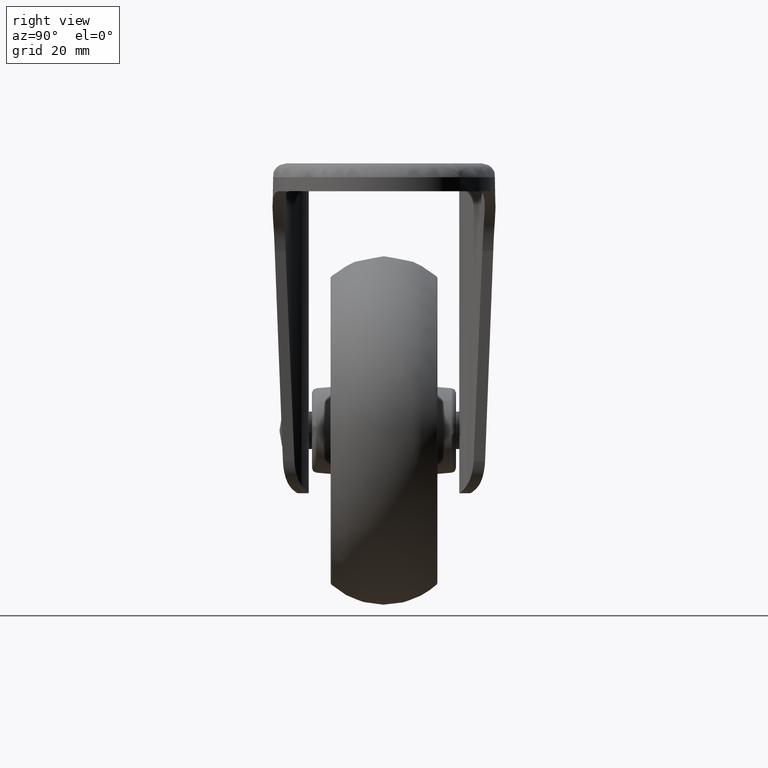
[diagram: clean part render]
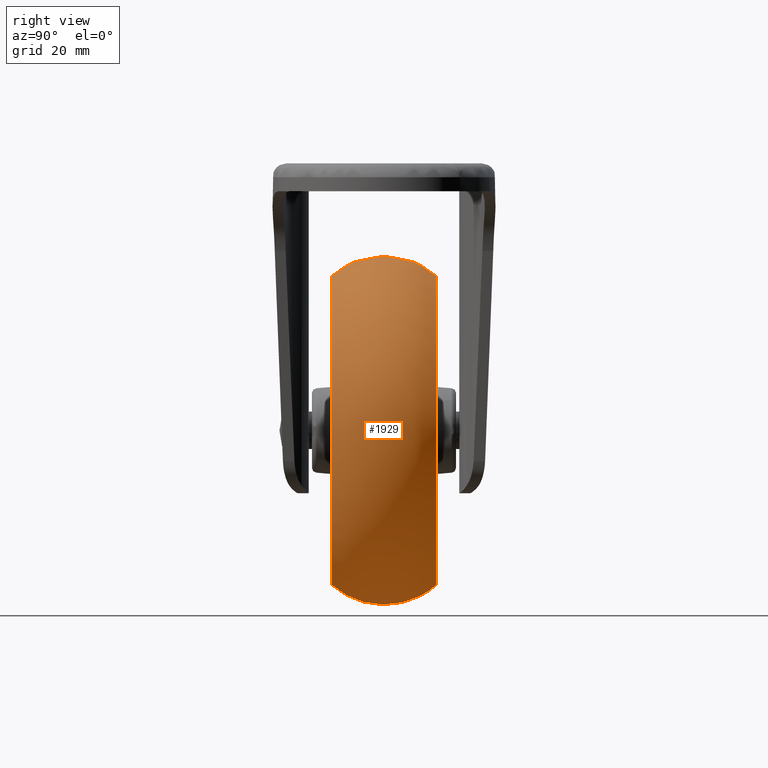
[diagram: same view with one face highlighted and labeled with its STEP entity id]
A machine part, right view. The second image highlights one B-rep face of the part: STEP entity #1929.
In plain terms, the highlighted face is a freeform B-spline surface patch.
Its self-contained STEP definition (entity closure, byte-faithful):
#1587=CARTESIAN_POINT('',(19.087546072659229,11.333333390564359,-30.370970014372290));
#1588=VERTEX_POINT('',#1587);
#1589=CARTESIAN_POINT('',(0.416828760859171,11.333333355879009,-90.668432805520183));
#1590=VERTEX_POINT('',#1589);
#1591=CARTESIAN_POINT('',(19.087546072659229,11.333333390564365,-30.370970014372300));
#1592=CARTESIAN_POINT('',(33.171051851883405,11.333333356382061,-40.279896599905918));
#1593=CARTESIAN_POINT('',(33.171051851883398,11.333333356382060,-57.500000000000000));
#1594=CARTESIAN_POINT('',(33.171051851883398,11.333333356382060,-90.256809430696592));
#1595=CARTESIAN_POINT('',(0.416828760859171,11.333333355879002,-90.668432805520183));
#1603=(BOUNDED_CURVE()B_SPLINE_CURVE(2,(#1591,#1592,#1593,#1594,#1595),.UNSPECIFIED.,.F.,.U.)B_SPLINE_CURVE_WITH_KNOTS((3,2,3),(0.098941835401221,0.250000000000000,0.497784295918441),.UNSPECIFIED.)CURVE()GEOMETRIC_REPRESENTATION_ITEM()RATIONAL_B_SPLINE_CURVE((0.859917636342776,0.823024351770445,1.0,0.709702639988092,0.994854295636446))REPRESENTATION_ITEM(''));
#1604=EDGE_CURVE('',#1588,#1590,#1603,.T.);
#1621=CARTESIAN_POINT('',(-33.090302693152083,11.333333355763241,-59.813125304134793));
#1622=VERTEX_POINT('',#1621);
#1636=CARTESIAN_POINT('',(-24.743652437382721,11.333333389487850,-35.407685789875728));
#1637=VERTEX_POINT('',#1636);
#1638=CARTESIAN_POINT('',(-33.090302693152076,11.333333355763243,-59.813125304134786));
#1639=CARTESIAN_POINT('',(-33.171051851883398,11.333333356382058,-58.657972093071272));
#1640=CARTESIAN_POINT('',(-33.171051851883398,11.333333356382060,-57.500000000000000));
#1641=CARTESIAN_POINT('',(-33.171051851883405,11.333333356382060,-44.846472562066047));
#1642=CARTESIAN_POINT('',(-24.743652437382718,11.333333389487848,-35.407685789875721));
#1650=(BOUNDED_CURVE()B_SPLINE_CURVE(2,(#1638,#1639,#1640,#1641,#1642),.UNSPECIFIED.,.F.,.U.)B_SPLINE_CURVE_WITH_KNOTS((3,2,3),(0.737833686532154,0.750000000000000,0.866465190487888),.UNSPECIFIED.)CURVE()GEOMETRIC_REPRESENTATION_ITEM()RATIONAL_B_SPLINE_CURVE((0.972879876380762,0.985746277149236,1.0,0.863552541913123,0.854236117407655))REPRESENTATION_ITEM(''));
#1651=EDGE_CURVE('',#1622,#1637,#1650,.T.);
#1735=CARTESIAN_POINT('',(0.0,11.333333356382060,-24.328948148116609));
#1736=VERTEX_POINT('',#1735);
#1737=CARTESIAN_POINT('',(0.0,11.333333356382060,-24.328948148116609));
#1738=CARTESIAN_POINT('',(10.500051755814004,11.333333356382063,-24.328948148116609));
#1739=CARTESIAN_POINT('',(19.087546072659229,11.333333390564365,-30.370970014372300));
#1747=(BOUNDED_CURVE()B_SPLINE_CURVE(2,(#1737,#1738,#1739),.UNSPECIFIED.,.F.,.U.)B_SPLINE_CURVE_WITH_KNOTS((3,3),(0.0,0.098941835401221),.UNSPECIFIED.)CURVE()GEOMETRIC_REPRESENTATION_ITEM()RATIONAL_B_SPLINE_CURVE((1.0,0.884082429416102,0.859917636342776))REPRESENTATION_ITEM(''));
#1748=EDGE_CURVE('',#1736,#1588,#1747,.T.);
#1780=CARTESIAN_POINT('',(-24.743652437382718,11.333333389487848,-35.407685789875721));
#1781=CARTESIAN_POINT('',(-14.852026505317763,11.333333356382061,-24.328948148116606));
#1782=CARTESIAN_POINT('',(0.0,11.333333356382060,-24.328948148116609));
#1790=(BOUNDED_CURVE()B_SPLINE_CURVE(2,(#1780,#1781,#1782),.UNSPECIFIED.,.F.,.U.)B_SPLINE_CURVE_WITH_KNOTS((3,3),(0.866465190487887,1.0),.UNSPECIFIED.)CURVE()GEOMETRIC_REPRESENTATION_ITEM()RATIONAL_B_SPLINE_CURVE((0.854236117407655,0.843554239273424,1.0))REPRESENTATION_ITEM(''));
#1791=EDGE_CURVE('',#1637,#1736,#1790,.T.);
#1796=CARTESIAN_POINT('',(-32.320295686641508,-12.141246051299873,-59.759297388754199));
#1797=CARTESIAN_POINT('',(-32.384955744852128,-12.141246051299877,-58.834305304540202));
#1798=CARTESIAN_POINT('',(-32.396607596636919,-12.141246051299873,-57.907129208355464));
#1799=CARTESIAN_POINT('',(-32.803736804992376,-12.141246051299873,-25.510521611718570));
#1800=CARTESIAN_POINT('',(-0.407129208355470,-12.141246051299873,-25.103392403363078));
#1801=CARTESIAN_POINT('',(31.989478388281437,-12.141246051299873,-24.696263195007617));
#1802=CARTESIAN_POINT('',(32.396607596636919,-12.141246051299873,-57.092870791644522));
#1803=CARTESIAN_POINT('',(32.803736804992390,-12.141246051299873,-89.489478388281441));
#1804=CARTESIAN_POINT('',(0.407129208355446,-12.141246051299873,-89.896607596636912));
#1805=CARTESIAN_POINT('',(-44.678389715614792,-0.000000330962809,-60.623169732013039));
#1806=CARTESIAN_POINT('',(-44.767773405287009,-0.000000330962809,-59.344494647383385));
#1807=CARTESIAN_POINT('',(-44.783880497251644,-0.000000330962809,-58.062800464818544));
#1808=CARTESIAN_POINT('',(-45.346680962070202,-0.000000330962809,-13.278919967566940));
#1809=CARTESIAN_POINT('',(-0.562800464818569,-0.000000330962809,-12.716119502748363));
#1810=CARTESIAN_POINT('',(44.221080032433058,-0.000000330962809,-12.153319037929798));
#1811=CARTESIAN_POINT('',(44.783880497251644,-0.000000330962809,-56.937199535181442));
#1812=CARTESIAN_POINT('',(45.346680962070202,-0.000000330962809,-101.721080032433040));
#1813=CARTESIAN_POINT('',(0.562800464818535,-0.000000330962809,-102.283880497251630));
#1814=CARTESIAN_POINT('',(-32.320296016731696,12.141245727001793,-59.759297411828619));
#1815=CARTESIAN_POINT('',(-32.384956075602709,12.141245727001788,-58.834305318167573));
#1816=CARTESIAN_POINT('',(-32.396607927506494,12.141245727001797,-57.907129212513510));
#1817=CARTESIAN_POINT('',(-32.803737140020012,12.141245727001792,-25.510521285007034));
#1818=CARTESIAN_POINT('',(-0.407129212513519,12.141245727001797,-25.103392072493516));
#1819=CARTESIAN_POINT('',(31.989478714992970,12.141245727001792,-24.696262859980010));
#1820=CARTESIAN_POINT('',(32.396607927506494,12.141245727001797,-57.092870787486476));
#1821=CARTESIAN_POINT('',(32.803737140020012,12.141245727001792,-89.489478714992970));
#1822=CARTESIAN_POINT('',(0.407129212513494,12.141245727001797,-89.896607927506480));
#1830=(BOUNDED_SURFACE()B_SPLINE_SURFACE(2,2,((#1796,#1805,#1814),(#1797,#1806,#1815),(#1798,#1807,#1816),(#1799,#1808,#1817),(#1800,#1809,#1818),(#1801,#1810,#1819),(#1802,#1811,#1820),(#1803,#1812,#1821),(#1804,#1813,#1822)),.UNSPECIFIED.,.F.,.F.,.U.)B_SPLINE_SURFACE_WITH_KNOTS((3,2,2,2,3),(3,3),(0.0,2.485279004089555,64.617313360053828,126.749347716018090,188.881382071982390),(0.0,28.568461953100421),.UNSPECIFIED.)GEOMETRIC_REPRESENTATION_ITEM()RATIONAL_B_SPLINE_SURFACE(((0.891926034698583,0.624304456737947,0.891926024486023),(0.901760850849706,0.631188345441138,0.901760840524537),(0.912450867518770,0.638670832541490,0.912450857071200),(0.645200195922070,0.451608476636145,0.645200188534523),(0.912450867518770,0.638670832541490,0.912450857071200),(0.645200195922070,0.451608476636145,0.645200188534523),(0.912450867518770,0.638670832541490,0.912450857071200),(0.645200195922070,0.451608476636145,0.645200188534523),(0.912450867518770,0.638670832541490,0.912450857071200)))REPRESENTATION_ITEM('')SURFACE());
#1831=ORIENTED_EDGE('',*,*,#1651,.F.);
#1832=CARTESIAN_POINT('',(-33.090302804869580,-11.333333299728819,-59.813125312003898));
#1833=VERTEX_POINT('',#1832);
#1834=CARTESIAN_POINT('',(-33.090302804869573,-11.333333299728817,-59.813125312003891));
#1835=CARTESIAN_POINT('',(-43.202467797790980,0.000000078441040,-60.520000221163585));
#1836=CARTESIAN_POINT('',(-33.090302693152069,11.333333355763244,-59.813125304134786));
#1844=(BOUNDED_CURVE()B_SPLINE_CURVE(2,(#1834,#1835,#1836),.UNSPECIFIED.,.F.,.U.)B_SPLINE_CURVE_WITH_KNOTS((3,3),(-1.710040864773123,-0.289959127900947),.UNSPECIFIED.)CURVE()GEOMETRIC_REPRESENTATION_ITEM()RATIONAL_B_SPLINE_CURVE((0.868722746517381,0.647507706783236,0.868722748799793))REPRESENTATION_ITEM(''));
#1845=EDGE_CURVE('',#1833,#1622,#1844,.T.);
#1846=ORIENTED_EDGE('',*,*,#1845,.F.);
#1847=CARTESIAN_POINT('',(0.0,-11.333333331469920,-24.328948002083362));
#1848=VERTEX_POINT('',#1847);
#1849=CARTESIAN_POINT('',(-33.090302804869580,-11.333333299728819,-59.813125312003905));
#1850=CARTESIAN_POINT('',(-33.171051997916649,-11.333333331469921,-58.657972098228761));
#1851=CARTESIAN_POINT('',(-33.171051997916642,-11.333333331469920,-57.500000000000000));
#1852=CARTESIAN_POINT('',(-33.171051997916635,-11.333333331469921,-24.328948002083358));
#1853=CARTESIAN_POINT('',(0.0,-11.333333331469920,-24.328948002083362));
#1861=(BOUNDED_CURVE()B_SPLINE_CURVE(2,(#1849,#1850,#1851,#1852,#1853),.UNSPECIFIED.,.F.,.U.)B_SPLINE_CURVE_WITH_KNOTS((3,2,3),(0.737833686531536,0.750000000000000,1.0),.UNSPECIFIED.)CURVE()GEOMETRIC_REPRESENTATION_ITEM()RATIONAL_B_SPLINE_CURVE((0.972879876379456,0.985746277148513,1.0,0.707106781186548,1.0))REPRESENTATION_ITEM(''));
#1862=EDGE_CURVE('',#1833,#1848,#1861,.T.);
#1863=ORIENTED_EDGE('',*,*,#1862,.T.);
#1864=CARTESIAN_POINT('',(24.180656240476239,-11.333333338469171,-34.792852358495473));
#1865=VERTEX_POINT('',#1864);
#1866=CARTESIAN_POINT('',(0.0,-11.333333331469920,-24.328948002083362));
#1867=CARTESIAN_POINT('',(14.354396003487238,-11.333333331469920,-24.328948002083365));
#1868=CARTESIAN_POINT('',(24.180656240476232,-11.333333338469174,-34.792852358495473));
#1876=(BOUNDED_CURVE()B_SPLINE_CURVE(2,(#1866,#1867,#1868),.UNSPECIFIED.,.F.,.U.)B_SPLINE_CURVE_WITH_KNOTS((3,3),(0.0,0.129740687157070),.UNSPECIFIED.)CURVE()GEOMETRIC_REPRESENTATION_ITEM()RATIONAL_B_SPLINE_CURVE((1.0,0.847999330109986,0.853764031098895))REPRESENTATION_ITEM(''));
#1877=EDGE_CURVE('',#1848,#1865,#1876,.T.);
#1878=ORIENTED_EDGE('',*,*,#1877,.T.);
#1879=CARTESIAN_POINT('',(22.707147641504520,-11.333333338469171,-81.680656240476239));
#1880=VERTEX_POINT('',#1879);
#1881=CARTESIAN_POINT('',(24.180656240476232,-11.333333338469174,-34.792852358495473));
#1882=CARTESIAN_POINT('',(33.171051997916642,-11.333333331469921,-44.366651432729469));
#1883=CARTESIAN_POINT('',(33.171051997916642,-11.333333331469920,-57.500000000000000));
#1884=CARTESIAN_POINT('',(33.171051997916649,-11.333333331469921,-71.854396003487253));
#1885=CARTESIAN_POINT('',(22.707147641504527,-11.333333338469174,-81.680656240476239));
#1893=(BOUNDED_CURVE()B_SPLINE_CURVE(2,(#1881,#1882,#1883,#1884,#1885),.UNSPECIFIED.,.F.,.U.)B_SPLINE_CURVE_WITH_KNOTS((3,2,3),(0.129740687157070,0.250000000000000,0.379740687157070),.UNSPECIFIED.)CURVE()GEOMETRIC_REPRESENTATION_ITEM()RATIONAL_B_SPLINE_CURVE((0.853764031098895,0.859107451076561,1.0,0.847999330109986,0.853764031098895))REPRESENTATION_ITEM(''));
#1894=EDGE_CURVE('',#1865,#1880,#1893,.T.);
#1895=ORIENTED_EDGE('',*,*,#1894,.T.);
#1896=CARTESIAN_POINT('',(0.416828762341289,-11.333333299748880,-90.668432917590295));
#1897=VERTEX_POINT('',#1896);
#1898=CARTESIAN_POINT('',(22.707147641504527,-11.333333338469174,-81.680656240476239));
#1899=CARTESIAN_POINT('',(13.308662926181521,-11.333333331469920,-90.506420856731737));
#1900=CARTESIAN_POINT('',(0.416828762341288,-11.333333299748880,-90.668432917590295));
#1908=(BOUNDED_CURVE()B_SPLINE_CURVE(2,(#1898,#1899,#1900),.UNSPECIFIED.,.F.,.U.)B_SPLINE_CURVE_WITH_KNOTS((3,3),(0.379740687157070,0.497784295917659),.UNSPECIFIED.)CURVE()GEOMETRIC_REPRESENTATION_ITEM()RATIONAL_B_SPLINE_CURVE((0.853764031098895,0.859009001840670,0.994854295634646))REPRESENTATION_ITEM(''));
#1909=EDGE_CURVE('',#1880,#1897,#1908,.T.);
#1910=ORIENTED_EDGE('',*,*,#1909,.T.);
#1911=CARTESIAN_POINT('',(0.416828762341288,-11.333333299748876,-90.668432917590295));
#1912=CARTESIAN_POINT('',(0.544208714920043,0.000000078613306,-100.804473926472510));
#1913=CARTESIAN_POINT('',(0.416828760859171,11.333333355879004,-90.668432805520183));
#1921=(BOUNDED_CURVE()B_SPLINE_CURVE(2,(#1911,#1912,#1913),.UNSPECIFIED.,.F.,.U.)B_SPLINE_CURVE_WITH_KNOTS((3,3),(-1.710040864776495,-0.289959127881487),.UNSPECIFIED.)CURVE()GEOMETRIC_REPRESENTATION_ITEM()RATIONAL_B_SPLINE_CURVE((0.888713648360747,0.662408045305696,0.888713650700810))REPRESENTATION_ITEM(''));
#1922=EDGE_CURVE('',#1897,#1590,#1921,.T.);
#1923=ORIENTED_EDGE('',*,*,#1922,.T.);
#1924=ORIENTED_EDGE('',*,*,#1604,.F.);
#1925=ORIENTED_EDGE('',*,*,#1748,.F.);
#1926=ORIENTED_EDGE('',*,*,#1791,.F.);
#1927=EDGE_LOOP('',(#1831,#1846,#1863,#1878,#1895,#1910,#1923,#1924,#1925,#1926));
#1928=FACE_OUTER_BOUND('',#1927,.T.);
#1929=ADVANCED_FACE('',(#1928),#1830,.T.);